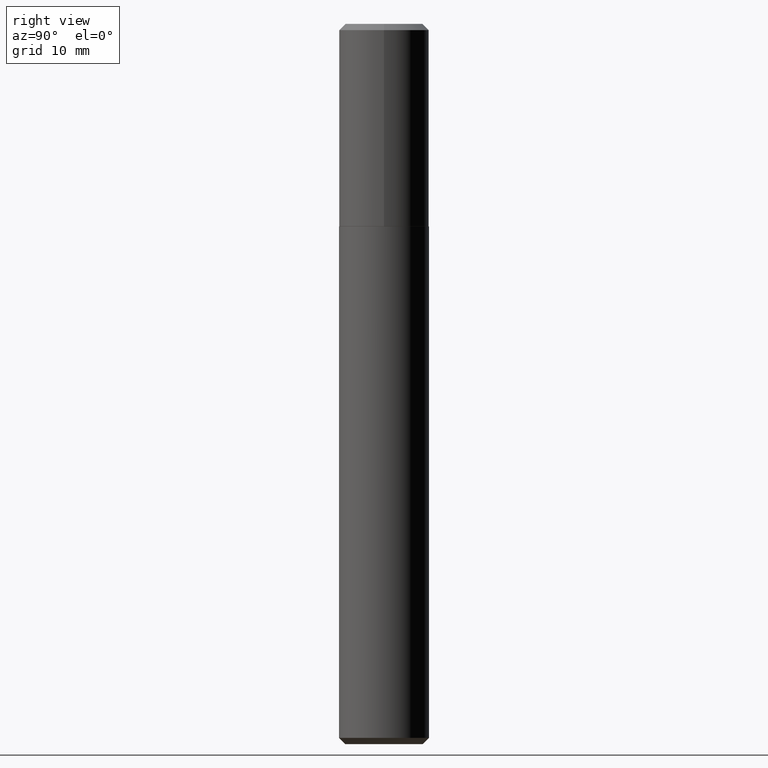
[diagram: clean part render]
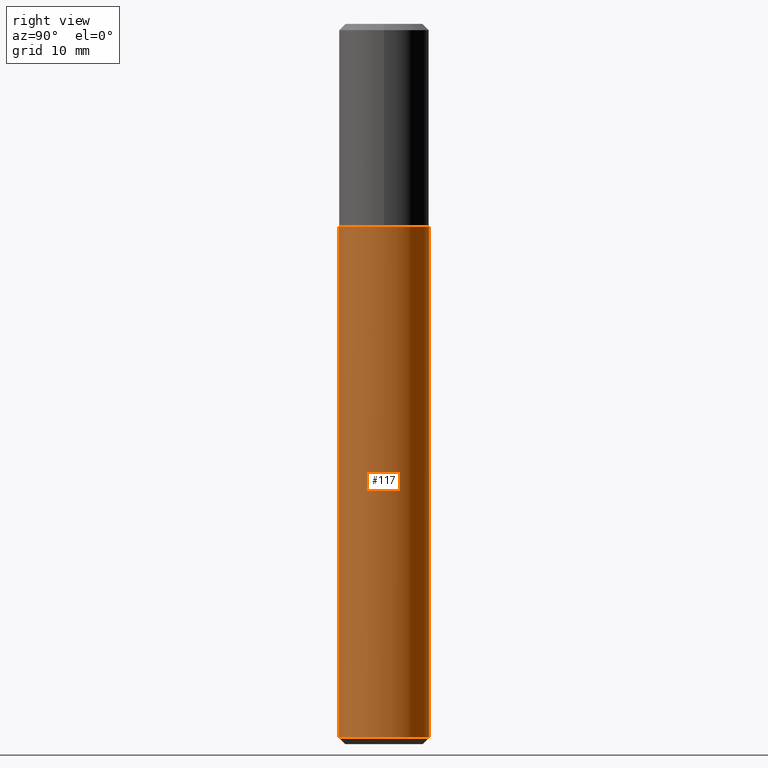
[diagram: same view with one face highlighted and labeled with its STEP entity id]
A machine part, right view. The second image highlights one B-rep face of the part: STEP entity #117.
In plain terms, the highlighted cylindrical surface (partial cylindrical patch) has radius 6.35 mm, axis along (-0, 0, 1).
Its self-contained STEP definition (entity closure, byte-faithful):
#38 = CARTESIAN_POINT ( 'NONE',  ( 1.776356839400348678E-15, 0.2499999999999863720, -3.965000000000001190 ) ) ;
#41 = DIRECTION ( 'NONE',  ( -6.982962677686265922E-15, -1.000000000000000000, 3.278217592397115862E-15 ) ) ;
#57 = ORIENTED_EDGE ( 'NONE', *, *, #388, .T. ) ;
#74 = CARTESIAN_POINT ( 'NONE',  ( 2.751152406958279232E-29, -3.927916506198539224E-15, -1.125000000000000222 ) ) ;
#75 = ORIENTED_EDGE ( 'NONE', *, *, #162, .F. ) ;
#77 = AXIS2_PLACEMENT_3D ( 'NONE', #165, #329, #41 ) ;
#93 = ORIENTED_EDGE ( 'NONE', *, *, #94, .T. ) ;
#94 = EDGE_CURVE ( 'NONE', #349, #172, #213, .T. ) ;
#110 = DIRECTION ( 'NONE',  ( -6.982962677686265922E-15, -1.000000000000000000, 3.278217592397115862E-15 ) ) ;
#117 = ADVANCED_FACE ( 'NONE', ( #280 ), #360, .T. ) ;
#132 = CIRCLE ( 'NONE', #160, 0.2500000000000000000 ) ;
#151 = CARTESIAN_POINT ( 'NONE',  ( -1.745740669421539068E-15, -0.2500000000000039413, -1.124999999999999334 ) ) ;
#160 = AXIS2_PLACEMENT_3D ( 'NONE', #74, #393, #110 ) ;
#162 = EDGE_CURVE ( 'NONE', #403, #319, #184, .T. ) ;
#165 = CARTESIAN_POINT ( 'NONE',  ( 2.751152406958279232E-29, -3.927916506198539224E-15, -1.125000000000000222 ) ) ;
#172 = VERTEX_POINT ( 'NONE', #288 ) ;
#182 = ORIENTED_EDGE ( 'NONE', *, *, #246, .F. ) ;
#184 = LINE ( 'NONE', #342, #371 ) ;
#213 = LINE ( 'NONE', #392, #236 ) ;
#236 = VECTOR ( 'NONE', #239, 39.37007874015748143 ) ;
#239 = DIRECTION ( 'NONE',  ( -2.447946569938002556E-29, 3.487933040123486811E-15, 1.000000000000000000 ) ) ;
#246 = EDGE_CURVE ( 'NONE', #319, #172, #132, .T. ) ;
#270 = CARTESIAN_POINT ( 'NONE',  ( -1.745740669421467873E-15, -0.2500000000000136002, -3.964999999999998970 ) ) ;
#280 = FACE_OUTER_BOUND ( 'NONE', #413, .T. ) ;
#288 = CARTESIAN_POINT ( 'NONE',  ( 1.776356839400347889E-15, 0.2499999999999960587, -1.125000000000000888 ) ) ;
#299 = DIRECTION ( 'NONE',  ( -6.982962677686265922E-15, -1.000000000000000000, 4.370956789862821150E-15 ) ) ;
#302 = CARTESIAN_POINT ( 'NONE',  ( 9.703320665582205963E-29, -1.383364634014924079E-14, -3.964999999999999858 ) ) ;
#319 = VERTEX_POINT ( 'NONE', #151 ) ;
#322 = CIRCLE ( 'NONE', #410, 0.2500000000000000000 ) ;
#325 = DIRECTION ( 'NONE',  ( -2.447946569938002556E-29, 3.487933040123486811E-15, 1.000000000000000000 ) ) ;
#329 = DIRECTION ( 'NONE',  ( -2.447946569938002556E-29, 3.487933040123486811E-15, 1.000000000000000000 ) ) ;
#342 = CARTESIAN_POINT ( 'NONE',  ( -1.745740669421539068E-15, -0.2500000000000039413, -1.124999999999999334 ) ) ;
#349 = VERTEX_POINT ( 'NONE', #38 ) ;
#355 = DIRECTION ( 'NONE',  ( -2.447946569938002556E-29, 3.487933040123486811E-15, 1.000000000000000000 ) ) ;
#360 = CYLINDRICAL_SURFACE ( 'NONE', #77, 0.2500000000000000000 ) ;
#371 = VECTOR ( 'NONE', #355, 39.37007874015748143 ) ;
#388 = EDGE_CURVE ( 'NONE', #403, #349, #322, .T. ) ;
#392 = CARTESIAN_POINT ( 'NONE',  ( 1.776356839400277680E-15, 0.2499999999999960587, -1.125000000000000888 ) ) ;
#393 = DIRECTION ( 'NONE',  ( -2.447946569938002556E-29, 3.487933040123486811E-15, 1.000000000000000000 ) ) ;
#403 = VERTEX_POINT ( 'NONE', #270 ) ;
#410 = AXIS2_PLACEMENT_3D ( 'NONE', #302, #325, #299 ) ;
#413 = EDGE_LOOP ( 'NONE', ( #57, #93, #182, #75 ) ) ;